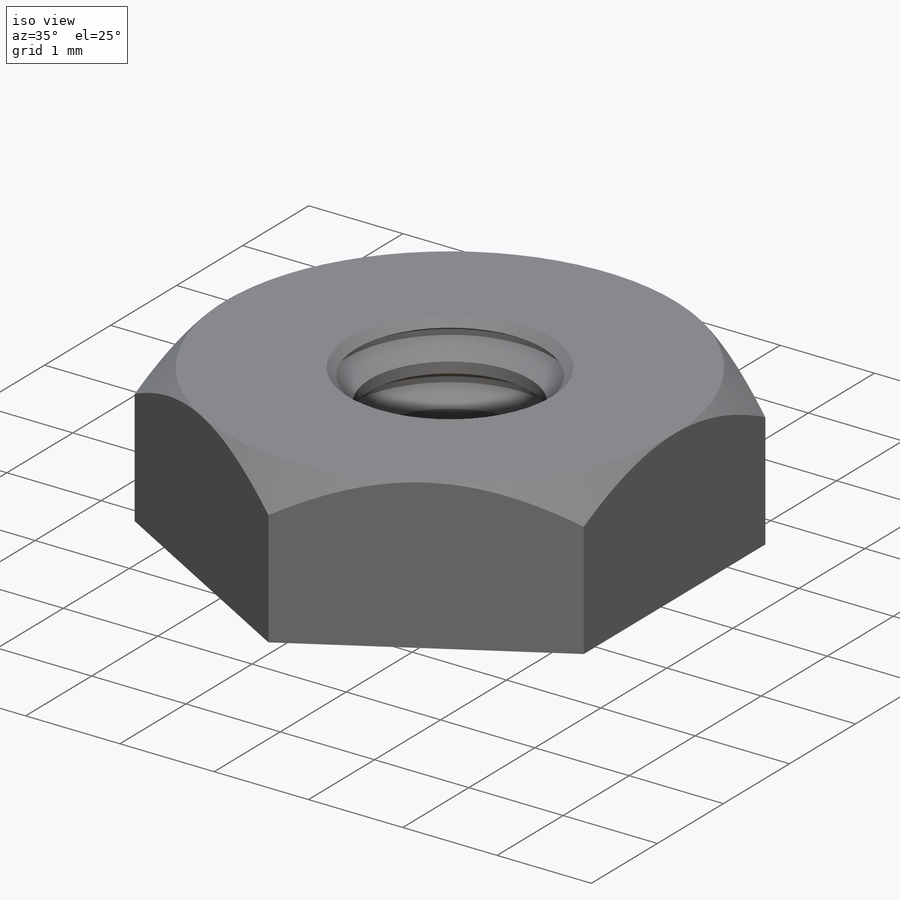
[diagram: iso view]
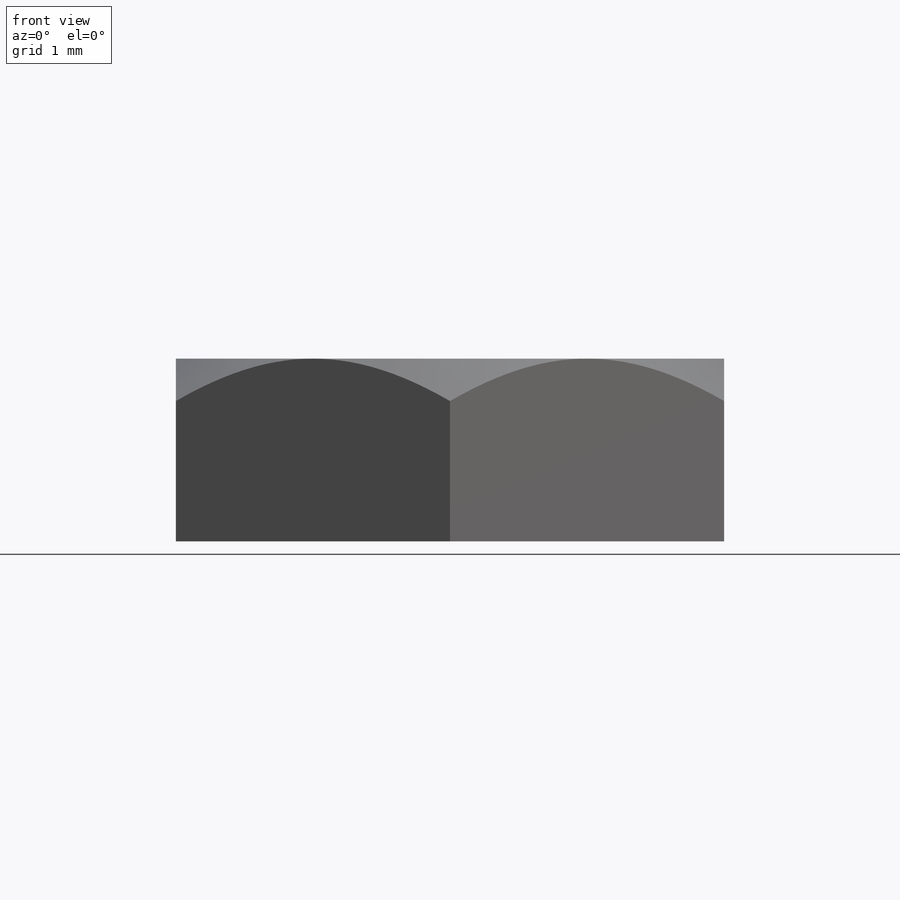
[diagram: front view]
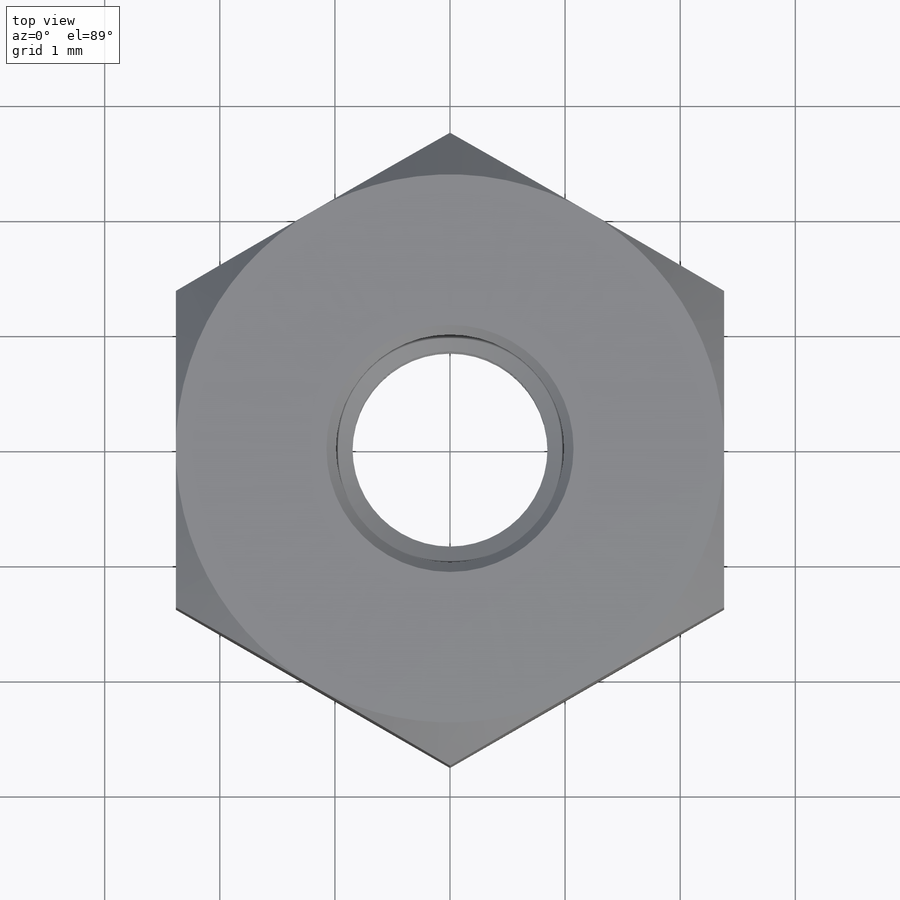
[diagram: top view]
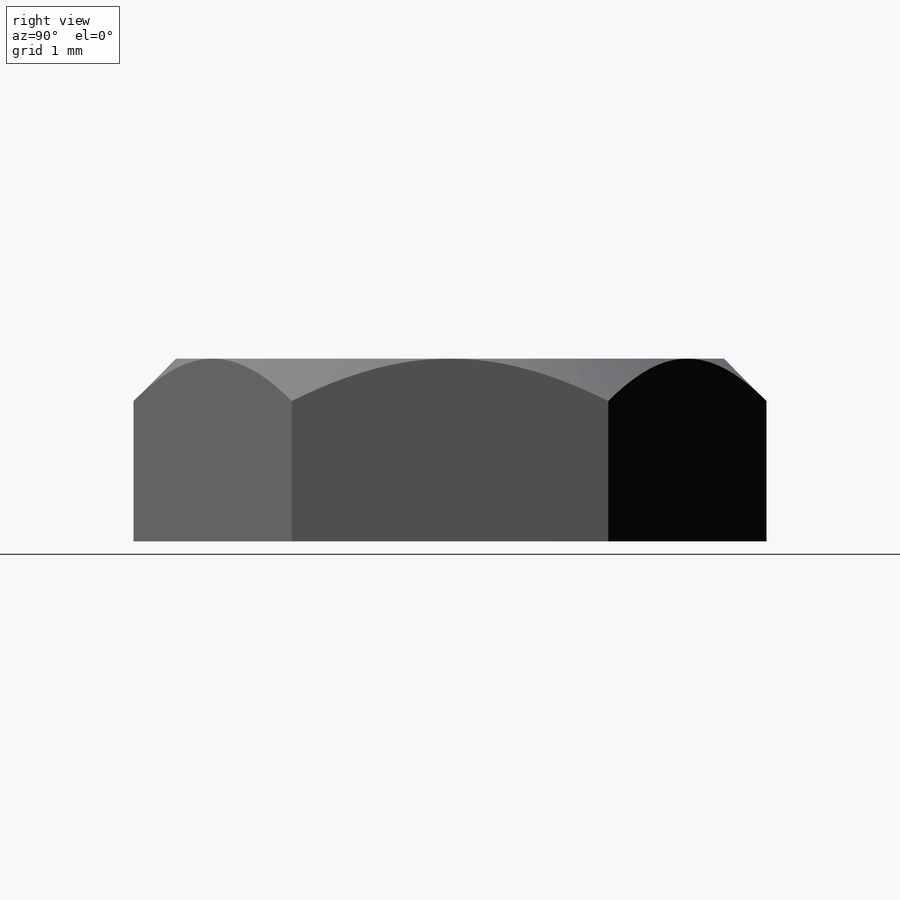
[diagram: right view]
SOLIDWORKS PART (.sldprt)
format: sldprt  version: not decoded by parser v0  size: 230,912 bytes
history: native  units: mm
features: sketch x3, cut_revolve x2, material x1, extrude x1, pattern_linear x1, chamfer x1 (+13 scaffold rows collapsed)
feature tree (22):
  scaffold x13  (default folders/planes/origin — collapsed)
  material  "Material <not specified>"
  sketch  "Sketch1"  dims[Hex Flats=4.7625mm]
  extrude  "Extrude1"  Depth=1.5875mm Height=1.5875mm
  sketch  "Sketch3"  dims[c1.D1=~0.569483mm c2.D1=45.0deg c2.D2=4.7625mm]
  cut_revolve  "Cut-Revolve2"  Angle=360deg
  sketch  "Sketch2"  dims[c1.D1=1.524mm c1.D2=~0.039688mm c1.D3=~0.079375mm c1.D4=0.3175mm c1.D5=~0.099129mm c2.D5=60.0deg c2.D1=~0.142294mm c3.D1=60.0deg c3.Pitch=~0.453571mm c3.Major Dia.=2.1844mm c3.D4=~0.079375mm c3.D5=~0.056696mm c3.D2=~0.113393mm]
  cut_revolve  "Cut-Revolve1"  Angle=360deg
  pattern_linear  "LPattern2"  Count1=4 Count2=1 Spacing1=0.453571mm Spacing2=50mm
  chamfer  "Chamfer1"  Distance=0.226786mm Angle=45deg
decode coverage: 8 of 8 modeling features carry decoded parameters
note: ~ marks probable driven/reference dimensions
note: suppression state not decoded; provenance and decode notes live in map.json
